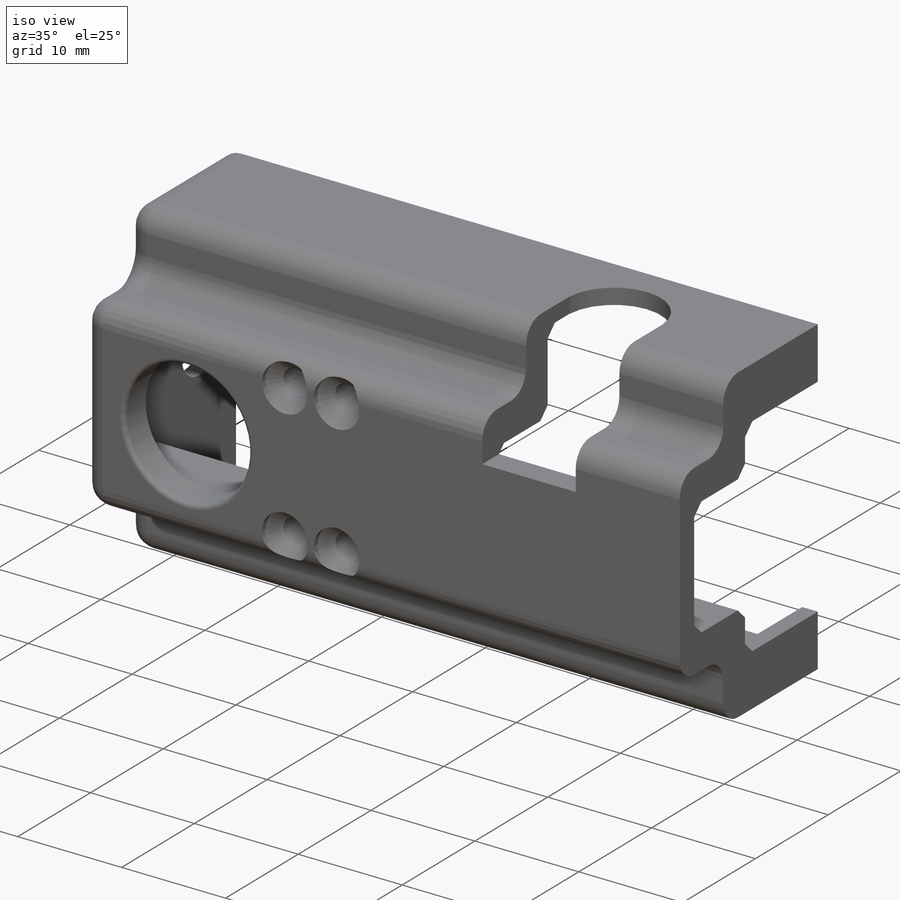
[diagram: iso view]
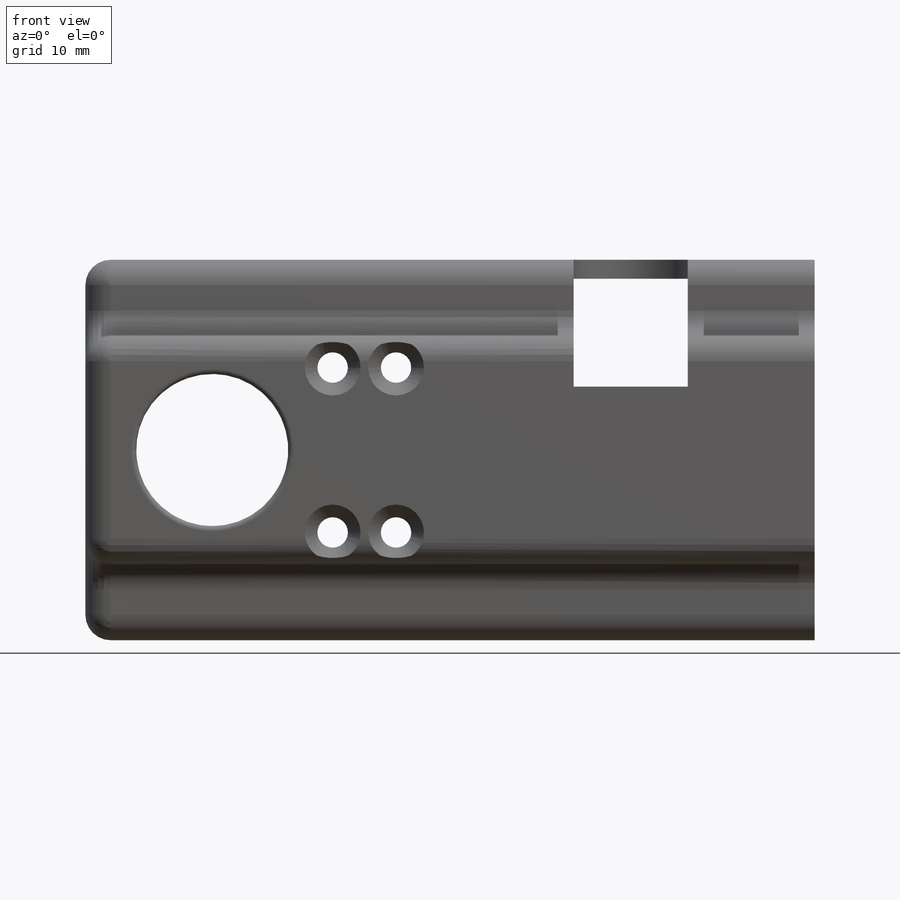
[diagram: front view]
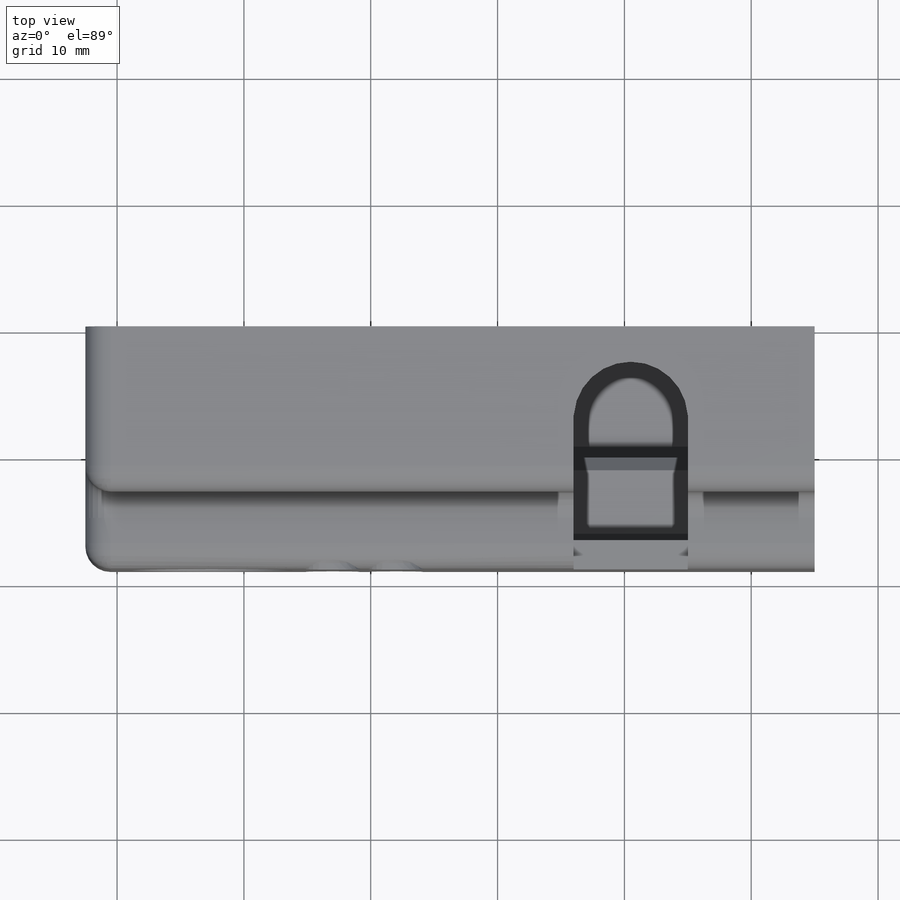
[diagram: top view]
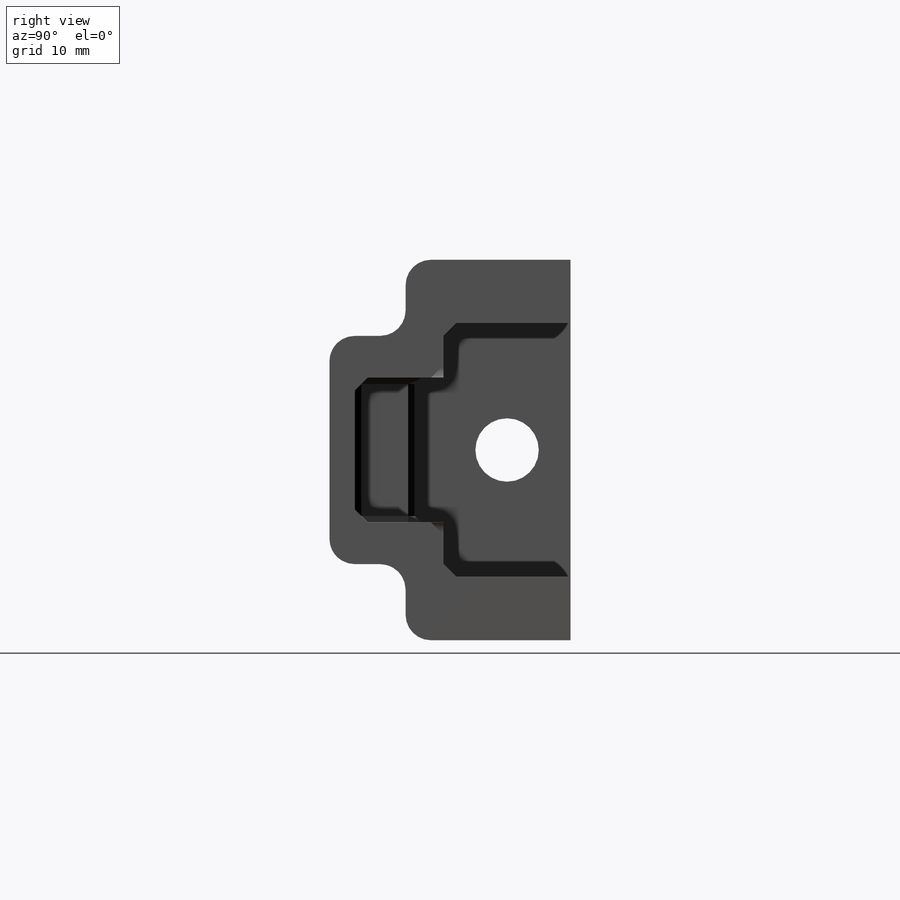
[diagram: right view]
SOLIDWORKS PART (.sldprt)
format: sldprt  version: not decoded by parser v0  size: 627,712 bytes
history: native  units: mm
features: sketch x17, extrude x7, cut_extrude x6, chamfer x3, hole x2, mirror x2, fillet x2, material x1 (+11 scaffold rows collapsed)
feature tree (51):
  scaffold x11  (default folders/planes/origin — collapsed)
  material  "ABS"
  sketch  "Sketch1"  dims[D1=12.0mm D2=30.0mm D3=14.5mm D4=55.0mm]
  extrude  "Boss-Extrude1"  Depth=3mm
  sketch  "Sketch2"  dims[D1=18.0mm]
  extrude  "Boss-Extrude2"  Depth=9mm
  sketch  "Sketch3"  dims[D1=11.4mm]
  cut_extrude  "Cut-Extrude1"  Depth=7mm
  sketch  "Sketch4"  dims[D1=5.0mm D2=1.5mm]
  extrude  "Boss-Extrude3"  Depth=10mm
  sketch  "Sketch5"  dims[D1=20.0mm]
  cut_extrude  "Cut-Extrude2"  Depth=1mm
  sketch  "Sketch8"  dims[D1=10.0mm]
  extrude  "Boss-Extrude4"  Depth=4.7mm
  hole  "M2 Clearance Hole1"  Diameter=2.4mm Depth=10mm
  sketch  "Sketch7"
  sketch  "Sketch6"  dims[hole-wizard template sketch: 47 standard entries collapsed; hole parameters kept: c15.Hole Depth=10.0mm c15.D3=~14.816244mm c15.Drill Angle=180.0deg]
  mirror  "Mirror1"
  chamfer  "Chamfer2"  Distance=0.5mm Angle=45deg
  hole  "CSK for M2 Countersunk Flat Head Screw1"  Diameter=2.4mm Depth=19mm
  sketch  "Sketch15"
  sketch  "Sketch14"  dims[hole-wizard template sketch: 57 standard entries collapsed; hole parameters kept: c17.Thru Hole Dia.=2.4mm c17.Thru Hole Depth=19.0mm c17.C'Sink Dia.=4.4mm c17.D4=~19.358014mm c17.C'Sink Angle=90.0deg c17.Head Clearance=0.5mm]
  sketch  "Sketch16"  dims[D1=0.0mm]
  extrude  "Boss-Extrude5"  Depth=1mm
  mirror  "Mirror2"
  sketch  "Sketch17"
  extrude  "Boss-Extrude6"  Depth=1.5mm
  sketch  "Sketch19"
  extrude  "Boss-Extrude7"  [1 undecoded]
  sketch  "Sketch20"
  cut_extrude  "Cut-Extrude4"  Depth=10mm
  sketch  "Sketch21"  dims[D1=5.0mm]
  cut_extrude  "Cut-Extrude5"  Depth=10mm
  chamfer  "Chamfer3"  Distance=1mm Angle=45deg
  fillet  "Fillet1"  Radius=2mm
  chamfer  "Chamfer4"  Distance=3mm Angle=45deg
  fillet  "Fillet2"  Radius=0.4mm
  sketch  "Sketch22"  dims[D1=9.0mm]
  cut_extrude  "Cut-Extrude6"  Depth=10mm
  sketch  "Sketch23"  dims[D1=2.0mm]
  cut_extrude  "Cut-Extrude7"  Depth=33mm
decode coverage: 31 of 39 modeling features carry decoded parameters
note: ~ marks probable driven/reference dimensions
note: 1 parameter value undecoded
note: suppression state not decoded; provenance and decode notes live in map.json
